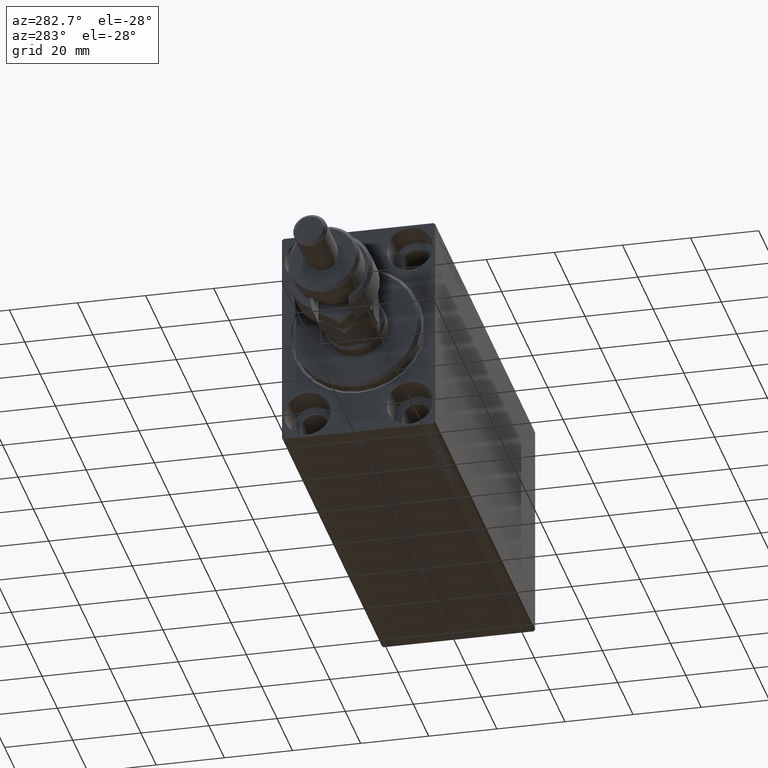
[diagram: clean part render]
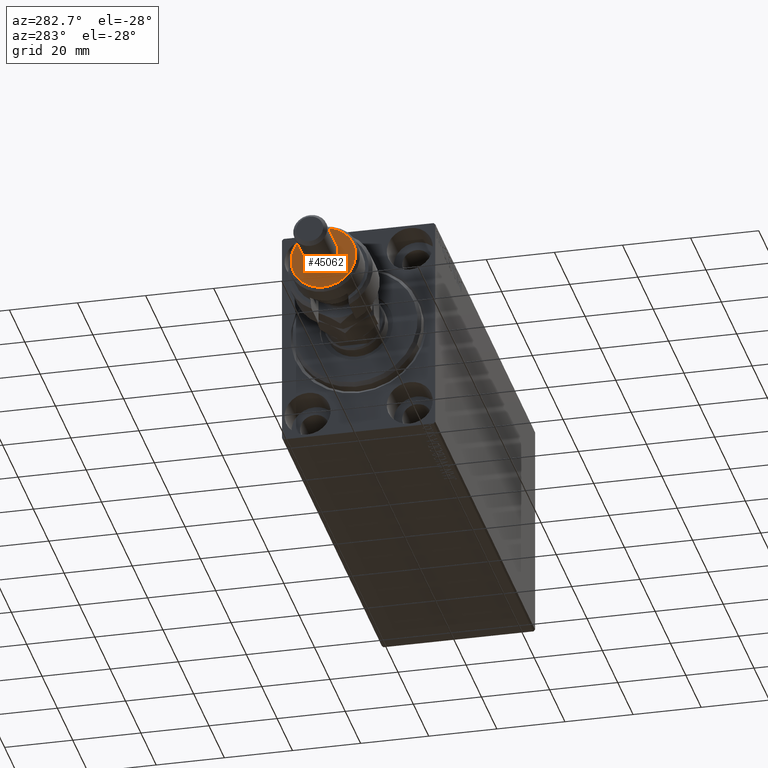
[diagram: same view with one face highlighted and labeled with its STEP entity id]
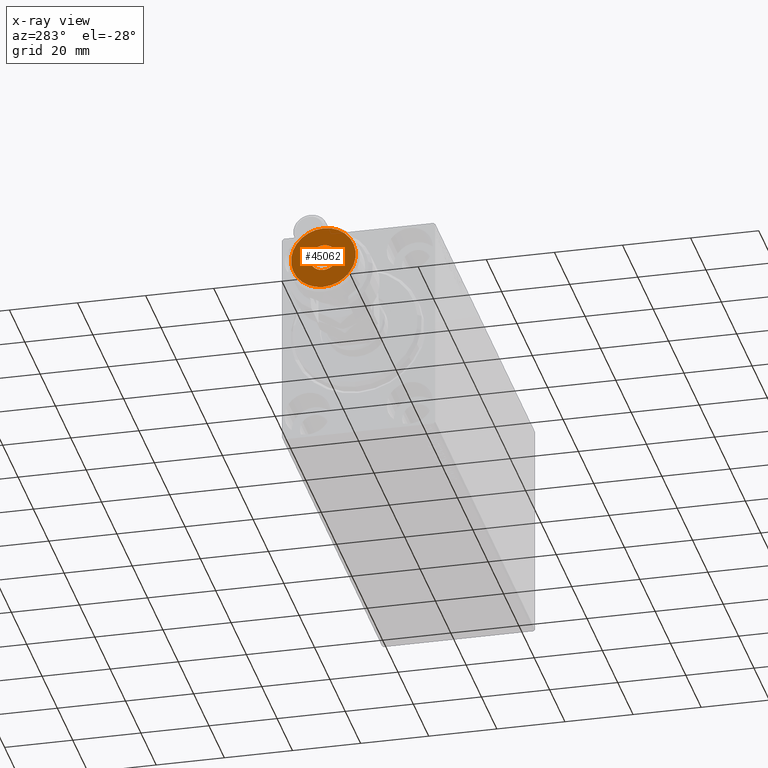
[diagram: x-ray of the same camera — body ghosted, the highlighted face saturated]
A machine part, auxiliary view. The second image highlights one B-rep face of the part: STEP entity #45062.
The next image is the same camera in x-ray: the body ghosted, the highlighted face saturated — about 0% of this face is hidden behind the body in this view.
In plain terms, the highlighted planar face has unit normal (-1, 0, 0).
Its self-contained STEP definition (entity closure, byte-faithful):
#697 = CIRCLE ( 'NONE', #36148, 9.500000000000001776 ) ;
#2359 = VERTEX_POINT ( 'NONE', #14193 ) ;
#4024 = DIRECTION ( 'NONE',  ( 1.000000000000000000, 0.000000000000000000, 0.000000000000000000 ) ) ;
#4456 = AXIS2_PLACEMENT_3D ( 'NONE', #37217, #35656, #24832 ) ;
#7460 = CIRCLE ( 'NONE', #4456, 9.500000000000001776 ) ;
#7795 = DIRECTION ( 'NONE',  ( 0.000000000000000000, 0.000000000000000000, 1.000000000000000000 ) ) ;
#7924 = DIRECTION ( 'NONE',  ( 1.000000000000000000, 0.000000000000000000, 0.000000000000000000 ) ) ;
#10169 = DIRECTION ( 'NONE',  ( 1.000000000000000000, 0.000000000000000000, 0.000000000000000000 ) ) ;
#10566 = EDGE_CURVE ( 'NONE', #12000, #41425, #7460, .T. ) ;
#10903 = EDGE_LOOP ( 'NONE', ( #38006, #38859 ) ) ;
#12000 = VERTEX_POINT ( 'NONE', #16385 ) ;
#12518 = ORIENTED_EDGE ( 'NONE', *, *, #10566, .T. ) ;
#12582 = FACE_OUTER_BOUND ( 'NONE', #46413, .T. ) ;
#12820 = PLANE ( 'NONE',  #33263 ) ;
#13289 = FACE_BOUND ( 'NONE', #10903, .T. ) ;
#14193 = CARTESIAN_POINT ( 'NONE',  ( 4.000000000000000000, 4.898587196589412829E-16, 19.00000000000000000 ) ) ;
#16385 = CARTESIAN_POINT ( 'NONE',  ( -9.500000000000001776, 0.000000000000000000, 19.00000000000000000 ) ) ;
#16795 = DIRECTION ( 'NONE',  ( 0.000000000000000000, 0.000000000000000000, 1.000000000000000000 ) ) ;
#17060 = DIRECTION ( 'NONE',  ( 1.000000000000000000, 0.000000000000000000, -0.000000000000000000 ) ) ;
#18871 = CARTESIAN_POINT ( 'NONE',  ( 0.000000000000000000, 0.000000000000000000, 19.00000000000000000 ) ) ;
#18934 = EDGE_CURVE ( 'NONE', #27690, #2359, #28394, .T. ) ;
#21208 = EDGE_CURVE ( 'NONE', #2359, #27690, #23916, .T. ) ;
#23916 = CIRCLE ( 'NONE', #45002, 4.000000000000000000 ) ;
#24832 = DIRECTION ( 'NONE',  ( 1.000000000000000000, 0.000000000000000000, 0.000000000000000000 ) ) ;
#27424 = DIRECTION ( 'NONE',  ( 0.000000000000000000, 0.000000000000000000, 1.000000000000000000 ) ) ;
#27690 = VERTEX_POINT ( 'NONE', #43924 ) ;
#28087 = CARTESIAN_POINT ( 'NONE',  ( 0.000000000000000000, 0.000000000000000000, 19.00000000000000000 ) ) ;
#28394 = CIRCLE ( 'NONE', #40396, 4.000000000000000000 ) ;
#28917 = EDGE_CURVE ( 'NONE', #41425, #12000, #697, .T. ) ;
#32668 = DIRECTION ( 'NONE',  ( 0.000000000000000000, 0.000000000000000000, 1.000000000000000000 ) ) ;
#33263 = AXIS2_PLACEMENT_3D ( 'NONE', #34714, #27424, #17060 ) ;
#34714 = CARTESIAN_POINT ( 'NONE',  ( 0.000000000000000000, 0.000000000000000000, 19.00000000000000000 ) ) ;
#35656 = DIRECTION ( 'NONE',  ( 0.000000000000000000, 0.000000000000000000, 1.000000000000000000 ) ) ;
#36148 = AXIS2_PLACEMENT_3D ( 'NONE', #28087, #16795, #10169 ) ;
#37217 = CARTESIAN_POINT ( 'NONE',  ( 0.000000000000000000, 0.000000000000000000, 19.00000000000000000 ) ) ;
#38006 = ORIENTED_EDGE ( 'NONE', *, *, #18934, .F. ) ;
#38859 = ORIENTED_EDGE ( 'NONE', *, *, #21208, .F. ) ;
#40396 = AXIS2_PLACEMENT_3D ( 'NONE', #18871, #7795, #4024 ) ;
#40820 = CARTESIAN_POINT ( 'NONE',  ( 9.500000000000001776, 1.224646799147353256E-15, 19.00000000000000000 ) ) ;
#41425 = VERTEX_POINT ( 'NONE', #40820 ) ;
#43924 = CARTESIAN_POINT ( 'NONE',  ( -4.000000000000000000, 0.000000000000000000, 19.00000000000000000 ) ) ;
#43972 = CARTESIAN_POINT ( 'NONE',  ( 0.000000000000000000, 0.000000000000000000, 19.00000000000000000 ) ) ;
#44338 = ORIENTED_EDGE ( 'NONE', *, *, #28917, .T. ) ;
#45002 = AXIS2_PLACEMENT_3D ( 'NONE', #43972, #32668, #7924 ) ;
#45062 = ADVANCED_FACE ( 'NONE', ( #12582, #13289 ), #12820, .T. ) ;
#46413 = EDGE_LOOP ( 'NONE', ( #12518, #44338 ) ) ;